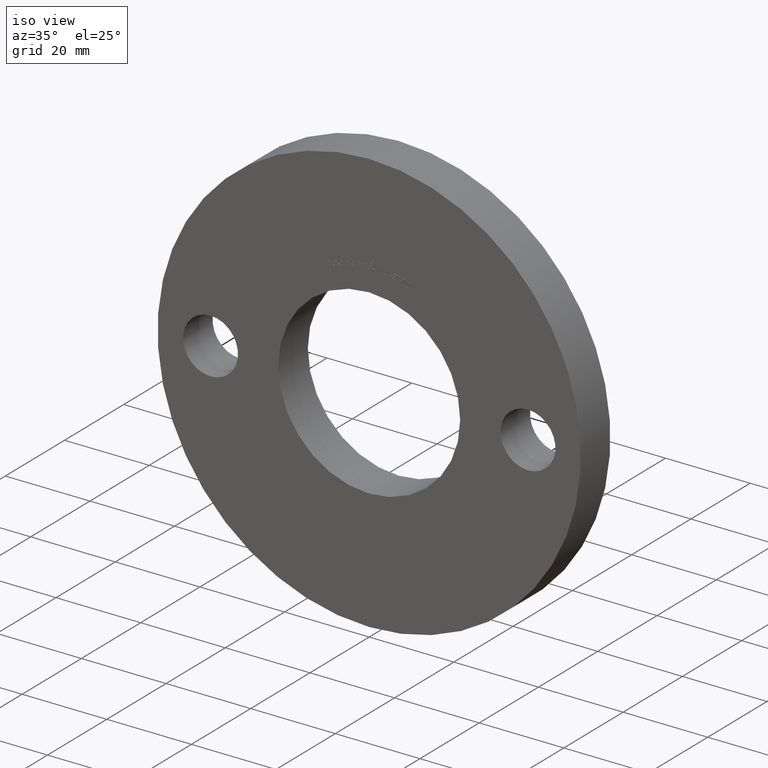
[diagram: clean part render]
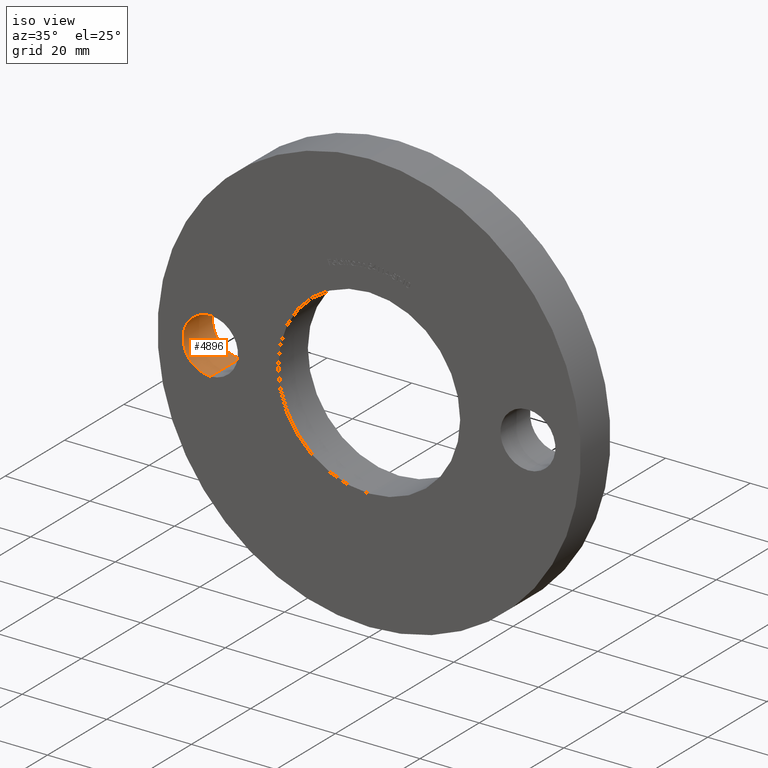
[diagram: same view with one face highlighted and labeled with its STEP entity id]
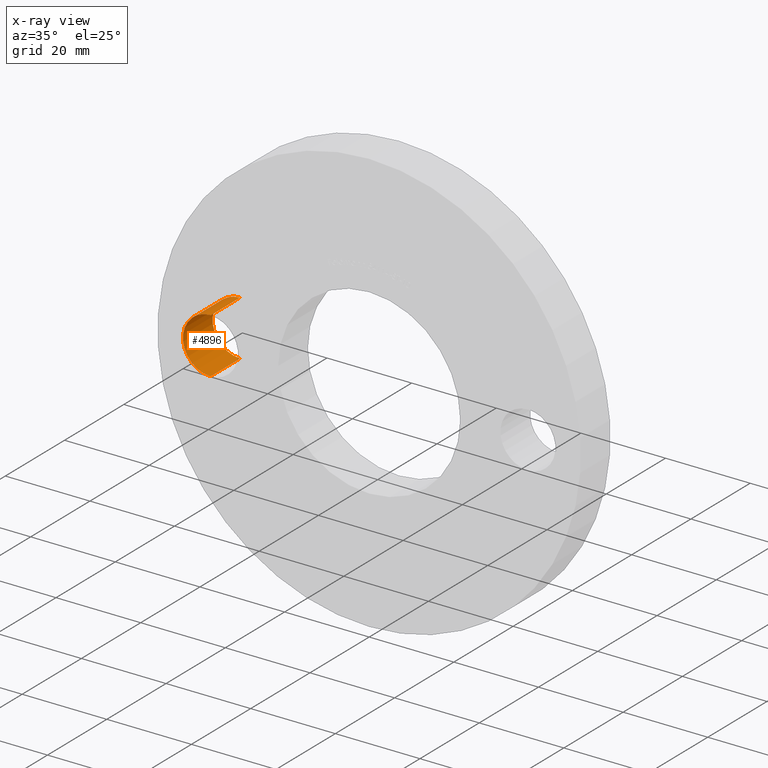
[diagram: x-ray of the same camera — body ghosted, the highlighted face saturated]
A machine part, iso view. The second image highlights one B-rep face of the part: STEP entity #4896.
The next image is the same camera in x-ray: the body ghosted, the highlighted face saturated — about 0% of this face is hidden behind the body in this view.
In plain terms, the highlighted cylindrical surface (edge-blend (fillet) strip) has radius 6.5 mm, axis along (-0, 1, -0).
Its self-contained STEP definition (entity closure, byte-faithful):
#514 = DIRECTION ( 'NONE',  ( 0.0000000000000000000, 1.000000000000000000, 0.0000000000000000000 ) ) ;
#671 = AXIS2_PLACEMENT_3D ( 'NONE', #9775, #5338, #5377 ) ;
#837 = VERTEX_POINT ( 'NONE', #9970 ) ;
#845 = CARTESIAN_POINT ( 'NONE',  ( -37.50000000000000000, 10.00000000000000000, -6.500000000000000900 ) ) ;
#930 = CIRCLE ( 'NONE', #3776, 6.500000000000000900 ) ;
#1033 = CARTESIAN_POINT ( 'NONE',  ( -37.50000000000000000, 10.00000000000000000, 6.500000000000000900 ) ) ;
#1290 = CARTESIAN_POINT ( 'NONE',  ( -37.50000000000000000, 0.0000000000000000000, 0.0000000000000000000 ) ) ;
#1514 = VECTOR ( 'NONE', #9795, 1000.000000000000000 ) ;
#1863 = ORIENTED_EDGE ( 'NONE', *, *, #4578, .T. ) ;
#2076 = VECTOR ( 'NONE', #8433, 1000.000000000000000 ) ;
#2258 = CARTESIAN_POINT ( 'NONE',  ( -37.50000000000000000, 0.0000000000000000000, -6.500000000000000900 ) ) ;
#2417 = ORIENTED_EDGE ( 'NONE', *, *, #6400, .F. ) ;
#3415 = CYLINDRICAL_SURFACE ( 'NONE', #6286, 6.500000000000000900 ) ;
#3559 = ORIENTED_EDGE ( 'NONE', *, *, #10119, .T. ) ;
#3776 = AXIS2_PLACEMENT_3D ( 'NONE', #6599, #514, #9207 ) ;
#4385 = FACE_OUTER_BOUND ( 'NONE', #8784, .T. ) ;
#4578 = EDGE_CURVE ( 'NONE', #7456, #8720, #930, .T. ) ;
#4723 = EDGE_CURVE ( 'NONE', #837, #8945, #8147, .T. ) ;
#4896 = ADVANCED_FACE ( 'NONE', ( #4385 ), #3415, .F. ) ;
#5338 = DIRECTION ( 'NONE',  ( 0.0000000000000000000, 1.000000000000000000, 0.0000000000000000000 ) ) ;
#5377 = DIRECTION ( 'NONE',  ( 0.0000000000000000000, 0.0000000000000000000, 1.000000000000000000 ) ) ;
#6286 = AXIS2_PLACEMENT_3D ( 'NONE', #1290, #6567, #7573 ) ;
#6400 = EDGE_CURVE ( 'NONE', #8945, #8720, #7769, .T. ) ;
#6567 = DIRECTION ( 'NONE',  ( -0.0000000000000000000, 1.000000000000000000, -0.0000000000000000000 ) ) ;
#6599 = CARTESIAN_POINT ( 'NONE',  ( -37.50000000000000000, 10.00000000000000000, 0.0000000000000000000 ) ) ;
#7096 = CARTESIAN_POINT ( 'NONE',  ( -37.50000000000000000, 0.0000000000000000000, 6.500000000000000900 ) ) ;
#7456 = VERTEX_POINT ( 'NONE', #845 ) ;
#7573 = DIRECTION ( 'NONE',  ( 0.0000000000000000000, 0.0000000000000000000, 1.000000000000000000 ) ) ;
#7769 = LINE ( 'NONE', #7096, #1514 ) ;
#8147 = CIRCLE ( 'NONE', #671, 6.500000000000000900 ) ;
#8340 = LINE ( 'NONE', #2258, #2076 ) ;
#8433 = DIRECTION ( 'NONE',  ( -0.0000000000000000000, 1.000000000000000000, -0.0000000000000000000 ) ) ;
#8720 = VERTEX_POINT ( 'NONE', #1033 ) ;
#8784 = EDGE_LOOP ( 'NONE', ( #9768, #3559, #1863, #2417 ) ) ;
#8945 = VERTEX_POINT ( 'NONE', #10131 ) ;
#9207 = DIRECTION ( 'NONE',  ( 0.0000000000000000000, 0.0000000000000000000, 1.000000000000000000 ) ) ;
#9768 = ORIENTED_EDGE ( 'NONE', *, *, #4723, .F. ) ;
#9775 = CARTESIAN_POINT ( 'NONE',  ( -37.50000000000000000, 0.0000000000000000000, 0.0000000000000000000 ) ) ;
#9795 = DIRECTION ( 'NONE',  ( -0.0000000000000000000, 1.000000000000000000, -0.0000000000000000000 ) ) ;
#9970 = CARTESIAN_POINT ( 'NONE',  ( -37.50000000000000000, 0.0000000000000000000, -6.500000000000000900 ) ) ;
#10119 = EDGE_CURVE ( 'NONE', #837, #7456, #8340, .T. ) ;
#10131 = CARTESIAN_POINT ( 'NONE',  ( -37.50000000000000000, 0.0000000000000000000, 6.500000000000000900 ) ) ;